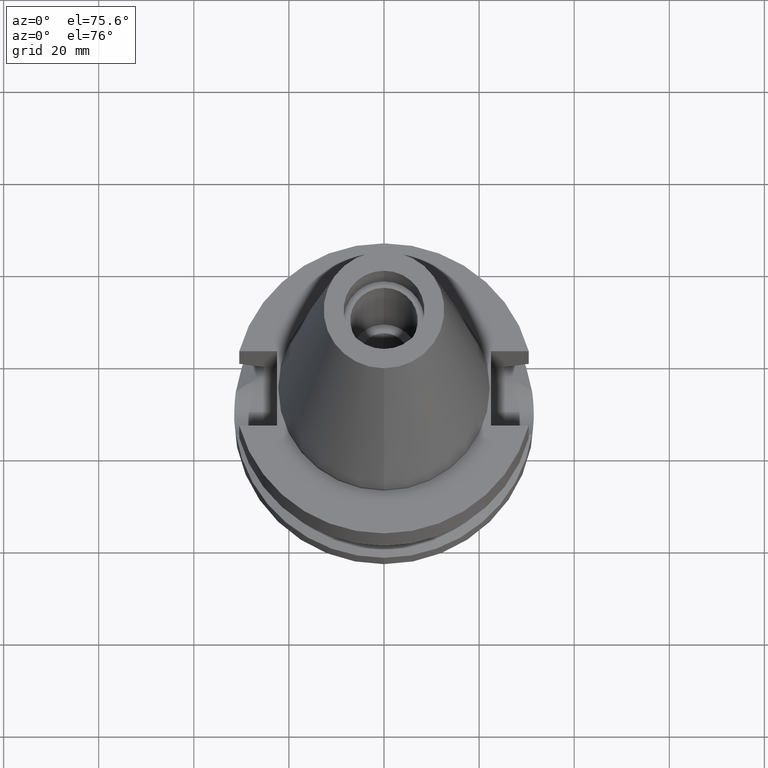
[diagram: clean part render]
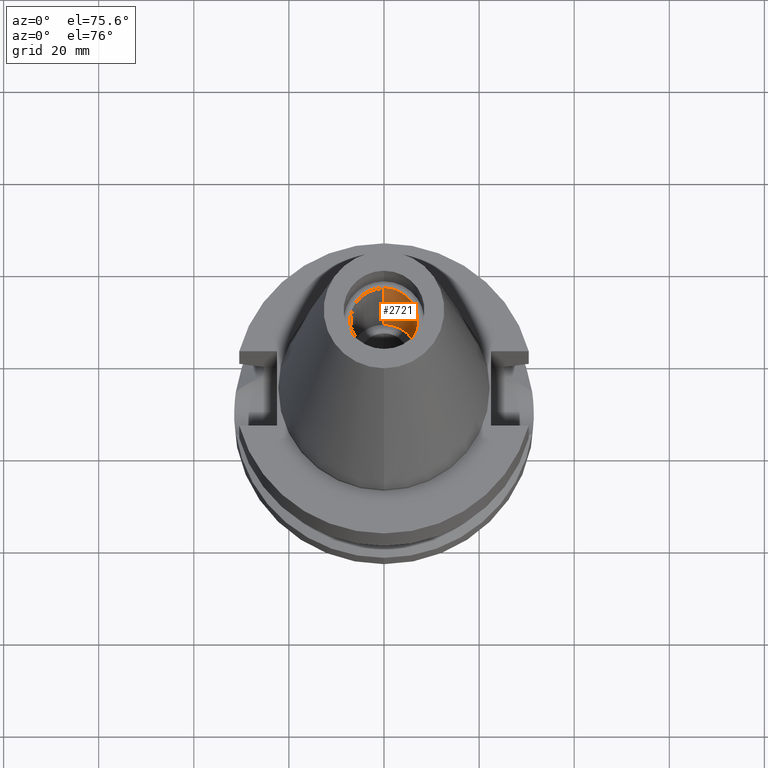
[diagram: same view with one face highlighted and labeled with its STEP entity id]
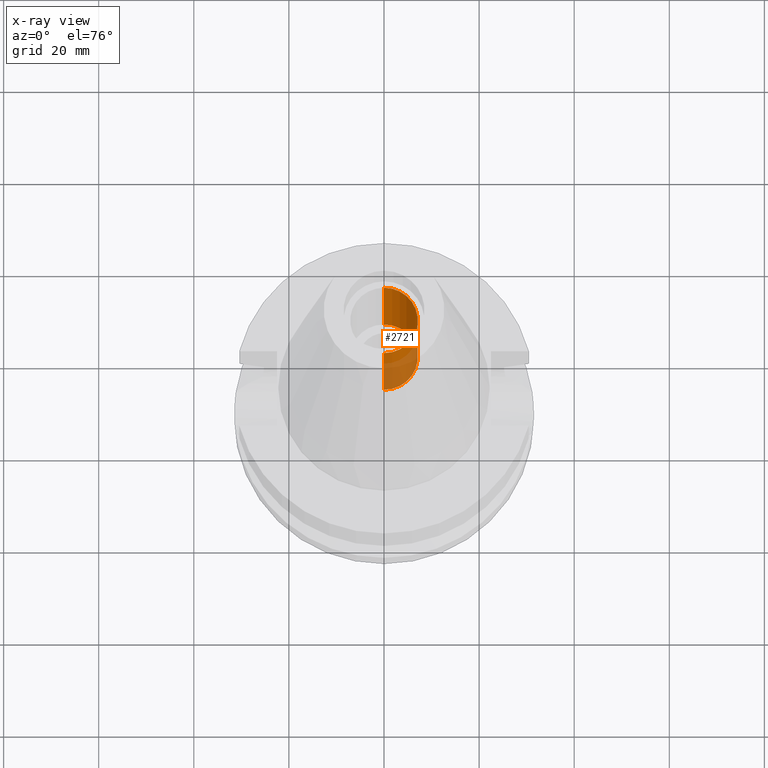
[diagram: x-ray of the same camera — body ghosted, the highlighted face saturated]
A machine part, auxiliary view. The second image highlights one B-rep face of the part: STEP entity #2721.
The next image is the same camera in x-ray: the body ghosted, the highlighted face saturated — about 37% of this face is hidden behind the body in this view.
In plain terms, the highlighted cylindrical surface (edge-blend (fillet) strip) has radius 7.1 mm, axis along (0, 0, -1).
Its self-contained STEP definition (entity closure, byte-faithful):
#138 = ORIENTED_EDGE ( 'NONE', *, *, #1517, .T. ) ;
#144 = DIRECTION ( 'NONE',  ( 0.0000000000000000000, 0.0000000000000000000, -1.000000000000000000 ) ) ;
#341 = DIRECTION ( 'NONE',  ( 0.0000000000000000000, 0.0000000000000000000, 1.000000000000000000 ) ) ;
#467 = CARTESIAN_POINT ( 'NONE',  ( 0.0000000000000000000, -7.100000000000000533, 56.39999999999999858 ) ) ;
#490 = ORIENTED_EDGE ( 'NONE', *, *, #623, .T. ) ;
#513 = DIRECTION ( 'NONE',  ( 0.0000000000000000000, 0.0000000000000000000, -1.000000000000000000 ) ) ;
#562 = CARTESIAN_POINT ( 'NONE',  ( 0.0000000000000000000, -7.100000000000000533, 25.39999999999999858 ) ) ;
#623 = EDGE_CURVE ( 'NONE', #1892, #1721, #2638, .T. ) ;
#664 = EDGE_CURVE ( 'NONE', #2041, #1721, #2236, .T. ) ;
#809 = VECTOR ( 'NONE', #341, 1000.000000000000000 ) ;
#823 = DIRECTION ( 'NONE',  ( 0.0000000000000000000, -1.000000000000000000, 0.0000000000000000000 ) ) ;
#826 = ORIENTED_EDGE ( 'NONE', *, *, #1995, .T. ) ;
#954 = CARTESIAN_POINT ( 'NONE',  ( 0.0000000000000000000, 7.100000000000000533, 25.39999999999999858 ) ) ;
#972 = DIRECTION ( 'NONE',  ( 0.0000000000000000000, 1.000000000000000000, 0.0000000000000000000 ) ) ;
#1030 = DIRECTION ( 'NONE',  ( 0.0000000000000000000, -1.000000000000000000, 0.0000000000000000000 ) ) ;
#1093 = CYLINDRICAL_SURFACE ( 'NONE', #2591, 7.100000000000000533 ) ;
#1250 = VERTEX_POINT ( 'NONE', #1887 ) ;
#1301 = CARTESIAN_POINT ( 'NONE',  ( 0.0000000000000000000, 7.100000000000000533, 25.39999999999999858 ) ) ;
#1356 = AXIS2_PLACEMENT_3D ( 'NONE', #1679, #513, #972 ) ;
#1507 = VECTOR ( 'NONE', #2934, 1000.000000000000000 ) ;
#1517 = EDGE_CURVE ( 'NONE', #1250, #1892, #1518, .T. ) ;
#1518 = LINE ( 'NONE', #562, #809 ) ;
#1576 = CARTESIAN_POINT ( 'NONE',  ( 0.0000000000000000000, 2.098248593318999714E-14, 71.33499999999999375 ) ) ;
#1679 = CARTESIAN_POINT ( 'NONE',  ( 0.0000000000000000000, 2.098248593318999714E-14, 25.39999999999999858 ) ) ;
#1702 = DIRECTION ( 'NONE',  ( 0.0000000000000000000, 0.0000000000000000000, 1.000000000000000000 ) ) ;
#1721 = VERTEX_POINT ( 'NONE', #2574 ) ;
#1887 = CARTESIAN_POINT ( 'NONE',  ( 0.0000000000000000000, -7.100000000000000533, 25.39999999999999858 ) ) ;
#1892 = VERTEX_POINT ( 'NONE', #467 ) ;
#1995 = EDGE_CURVE ( 'NONE', #2041, #1250, #2586, .T. ) ;
#2041 = VERTEX_POINT ( 'NONE', #954 ) ;
#2236 = LINE ( 'NONE', #1301, #1507 ) ;
#2285 = FACE_OUTER_BOUND ( 'NONE', #2832, .T. ) ;
#2443 = AXIS2_PLACEMENT_3D ( 'NONE', #2871, #1702, #1030 ) ;
#2574 = CARTESIAN_POINT ( 'NONE',  ( 0.0000000000000000000, 7.100000000000000533, 56.39999999999999858 ) ) ;
#2586 = CIRCLE ( 'NONE', #1356, 7.100000000000000533 ) ;
#2591 = AXIS2_PLACEMENT_3D ( 'NONE', #1576, #144, #823 ) ;
#2638 = CIRCLE ( 'NONE', #2443, 7.100000000000000533 ) ;
#2721 = ADVANCED_FACE ( 'NONE', ( #2285 ), #1093, .F. ) ;
#2832 = EDGE_LOOP ( 'NONE', ( #826, #138, #490, #2942 ) ) ;
#2871 = CARTESIAN_POINT ( 'NONE',  ( 0.0000000000000000000, 2.098248593318999714E-14, 56.39999999999999858 ) ) ;
#2934 = DIRECTION ( 'NONE',  ( 0.0000000000000000000, 0.0000000000000000000, 1.000000000000000000 ) ) ;
#2942 = ORIENTED_EDGE ( 'NONE', *, *, #664, .F. ) ;